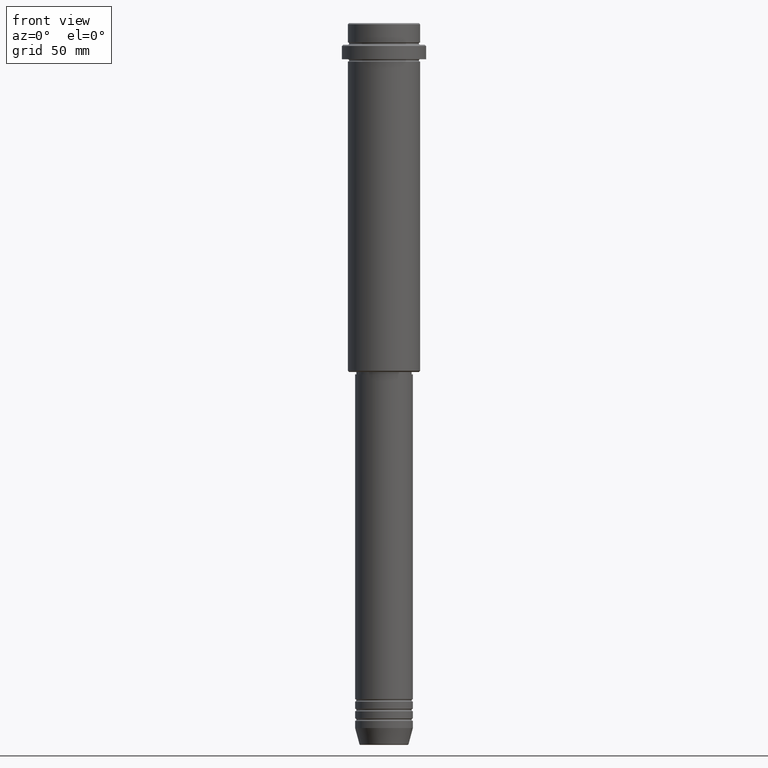
[diagram: clean part render]
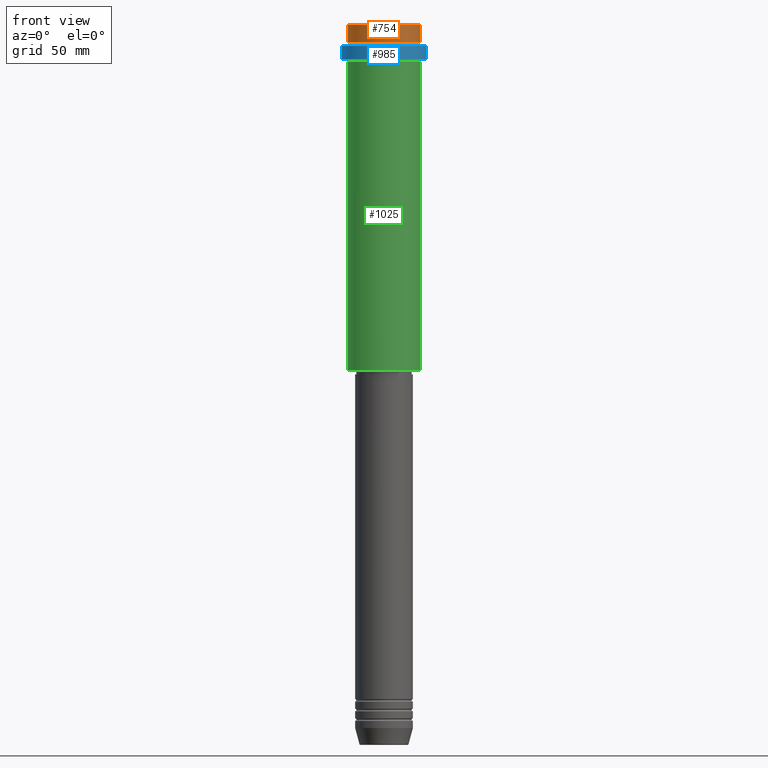
[diagram: same view with three faces highlighted in distinct colors, each labeled with its STEP entity id]
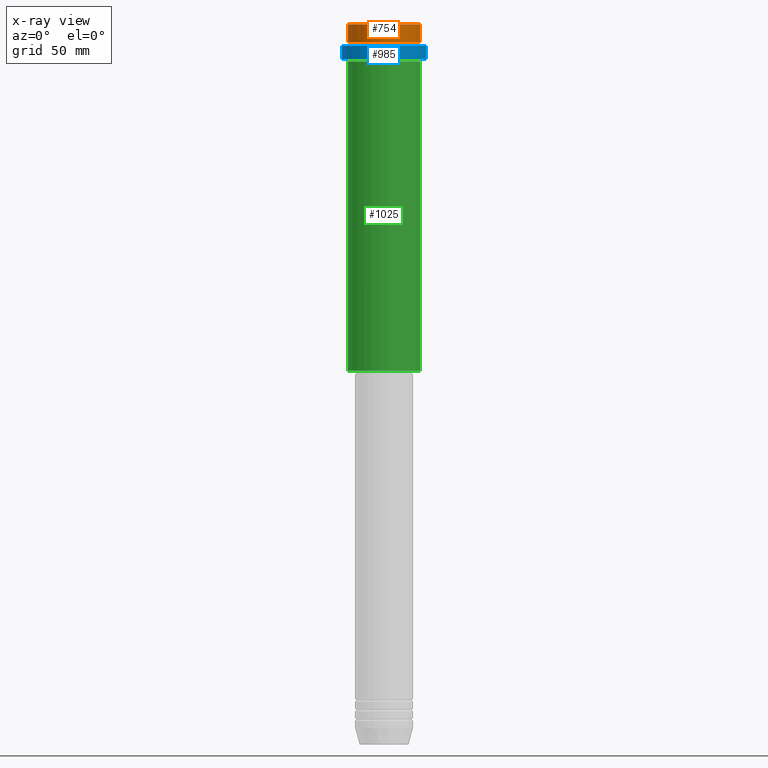
[diagram: x-ray of the same camera — body ghosted, the three highlighted faces saturated]
A machine part, front view with three faces highlighted in distinct colors.
The next image is the same camera in x-ray (body ghosted, the three faces saturated) — at least one of them is partly hidden behind the body in this view.
Their STEP definitions:

[orange] entity #754 — the highlighted cylindrical surface (edge-blend (fillet) strip) has radius 15 mm, axis along (-0, -0, 1).
#49 = VERTEX_POINT ( 'NONE', #160 ) ;
#53 = LINE ( 'NONE', #942, #1100 ) ;
#57 = CIRCLE ( 'NONE', #173, 15.00000000000000000 ) ;
#88 = CARTESIAN_POINT ( 'NONE',  ( -15.00000000000000000, 1.836970198721029589E-15, -0.5000000000000386358 ) ) ;
#95 = CARTESIAN_POINT ( 'NONE',  ( 0.000000000000000000, 0.000000000000000000, -7.999999999999998224 ) ) ;
#123 = EDGE_CURVE ( 'NONE', #1335, #1302, #57, .T. ) ;
#147 = DIRECTION ( 'NONE',  ( 1.000000000000000000, 0.000000000000000000, 0.000000000000000000 ) ) ;
#160 = CARTESIAN_POINT ( 'NONE',  ( 15.00000000000000000, 0.000000000000000000, -7.999999999999998224 ) ) ;
#173 = AXIS2_PLACEMENT_3D ( 'NONE', #1329, #1339, #147 ) ;
#178 = CARTESIAN_POINT ( 'NONE',  ( 0.000000000000000000, 0.000000000000000000, 0.000000000000000000 ) ) ;
#213 = CARTESIAN_POINT ( 'NONE',  ( 15.00000000000000000, 0.000000000000000000, -0.5000000000000386358 ) ) ;
#219 = CIRCLE ( 'NONE', #522, 15.00000000000000000 ) ;
#250 = LINE ( 'NONE', #666, #1166 ) ;
#264 = VERTEX_POINT ( 'NONE', #574 ) ;
#321 = DIRECTION ( 'NONE',  ( -0.000000000000000000, -0.000000000000000000, 1.000000000000000000 ) ) ;
#381 = DIRECTION ( 'NONE',  ( -0.000000000000000000, -0.000000000000000000, 1.000000000000000000 ) ) ;
#412 = DIRECTION ( 'NONE',  ( -0.000000000000000000, -0.000000000000000000, 1.000000000000000000 ) ) ;
#418 = ORIENTED_EDGE ( 'NONE', *, *, #711, .T. ) ;
#522 = AXIS2_PLACEMENT_3D ( 'NONE', #95, #321, #983 ) ;
#553 = EDGE_CURVE ( 'NONE', #264, #1302, #250, .T. ) ;
#574 = CARTESIAN_POINT ( 'NONE',  ( -15.00000000000000000, 1.836970198721029589E-15, -7.999999999999998224 ) ) ;
#666 = CARTESIAN_POINT ( 'NONE',  ( -15.00000000000000000, 1.836970198721029589E-15, 0.000000000000000000 ) ) ;
#711 = EDGE_CURVE ( 'NONE', #49, #1335, #53, .T. ) ;
#754 = ADVANCED_FACE ( 'NONE', ( #975 ), #1397, .T. ) ;
#792 = EDGE_CURVE ( 'NONE', #264, #49, #219, .T. ) ;
#942 = CARTESIAN_POINT ( 'NONE',  ( 15.00000000000000000, 0.000000000000000000, 0.000000000000000000 ) ) ;
#975 = FACE_OUTER_BOUND ( 'NONE', #1158, .T. ) ;
#983 = DIRECTION ( 'NONE',  ( 1.000000000000000000, 0.000000000000000000, 0.000000000000000000 ) ) ;
#1040 = ORIENTED_EDGE ( 'NONE', *, *, #553, .F. ) ;
#1100 = VECTOR ( 'NONE', #381, 1000.000000000000000 ) ;
#1158 = EDGE_LOOP ( 'NONE', ( #1040, #1351, #418, #1373 ) ) ;
#1166 = VECTOR ( 'NONE', #1332, 1000.000000000000000 ) ;
#1302 = VERTEX_POINT ( 'NONE', #88 ) ;
#1329 = CARTESIAN_POINT ( 'NONE',  ( 0.000000000000000000, 0.000000000000000000, -0.5000000000000386358 ) ) ;
#1332 = DIRECTION ( 'NONE',  ( -0.000000000000000000, -0.000000000000000000, 1.000000000000000000 ) ) ;
#1335 = VERTEX_POINT ( 'NONE', #213 ) ;
#1339 = DIRECTION ( 'NONE',  ( 0.000000000000000000, 0.000000000000000000, -1.000000000000000000 ) ) ;
#1351 = ORIENTED_EDGE ( 'NONE', *, *, #792, .T. ) ;
#1373 = ORIENTED_EDGE ( 'NONE', *, *, #123, .T. ) ;
#1390 = AXIS2_PLACEMENT_3D ( 'NONE', #178, #412, #1400 ) ;
#1397 = CYLINDRICAL_SURFACE ( 'NONE', #1390, 15.00000000000000000 ) ;
#1400 = DIRECTION ( 'NONE',  ( 1.000000000000000000, 0.000000000000000000, 0.000000000000000000 ) ) ;

[blue] entity #985 — the highlighted cylindrical surface (partial cylindrical patch) has radius 17.5 mm, axis along (-0, -0, 1).
#17 = CARTESIAN_POINT ( 'NONE',  ( -17.50000000000000000, 2.143131898507868248E-15, -15.00000000000000178 ) ) ;
#27 = CARTESIAN_POINT ( 'NONE',  ( 0.000000000000000000, 0.000000000000000000, -9.500000000000028422 ) ) ;
#144 = DIRECTION ( 'NONE',  ( -0.000000000000000000, -0.000000000000000000, 1.000000000000000000 ) ) ;
#146 = ORIENTED_EDGE ( 'NONE', *, *, #1132, .T. ) ;
#181 = VERTEX_POINT ( 'NONE', #700 ) ;
#188 = EDGE_CURVE ( 'NONE', #566, #1321, #1412, .T. ) ;
#242 = VECTOR ( 'NONE', #144, 1000.000000000000000 ) ;
#360 = CARTESIAN_POINT ( 'NONE',  ( 17.50000000000000000, 0.000000000000000000, 0.000000000000000000 ) ) ;
#432 = CARTESIAN_POINT ( 'NONE',  ( -17.50000000000000000, 2.143131898507868248E-15, 0.000000000000000000 ) ) ;
#517 = ORIENTED_EDGE ( 'NONE', *, *, #1072, .T. ) ;
#554 = DIRECTION ( 'NONE',  ( -0.000000000000000000, -0.000000000000000000, 1.000000000000000000 ) ) ;
#557 = DIRECTION ( 'NONE',  ( 1.000000000000000000, 0.000000000000000000, 0.000000000000000000 ) ) ;
#566 = VERTEX_POINT ( 'NONE', #17 ) ;
#603 = DIRECTION ( 'NONE',  ( 1.000000000000000000, 0.000000000000000000, 0.000000000000000000 ) ) ;
#671 = CYLINDRICAL_SURFACE ( 'NONE', #1346, 17.50000000000000000 ) ;
#700 = CARTESIAN_POINT ( 'NONE',  ( 17.50000000000000000, 0.000000000000000000, -15.00000000000000178 ) ) ;
#724 = DIRECTION ( 'NONE',  ( 0.000000000000000000, 0.000000000000000000, -1.000000000000000000 ) ) ;
#768 = CARTESIAN_POINT ( 'NONE',  ( -17.50000000000000000, 2.143131898507868248E-15, -9.500000000000028422 ) ) ;
#794 = CARTESIAN_POINT ( 'NONE',  ( 0.000000000000000000, 0.000000000000000000, 0.000000000000000000 ) ) ;
#837 = EDGE_LOOP ( 'NONE', ( #864, #1282, #146, #517 ) ) ;
#864 = ORIENTED_EDGE ( 'NONE', *, *, #188, .F. ) ;
#873 = CIRCLE ( 'NONE', #1237, 17.50000000000000000 ) ;
#950 = DIRECTION ( 'NONE',  ( 1.000000000000000000, 0.000000000000000000, 0.000000000000000000 ) ) ;
#985 = ADVANCED_FACE ( 'NONE', ( #1109 ), #671, .T. ) ;
#1051 = CARTESIAN_POINT ( 'NONE',  ( 0.000000000000000000, 0.000000000000000000, -15.00000000000000178 ) ) ;
#1055 = EDGE_CURVE ( 'NONE', #566, #181, #1079, .T. ) ;
#1072 = EDGE_CURVE ( 'NONE', #1202, #1321, #873, .T. ) ;
#1079 = CIRCLE ( 'NONE', #1324, 17.50000000000000000 ) ;
#1104 = DIRECTION ( 'NONE',  ( -0.000000000000000000, -0.000000000000000000, 1.000000000000000000 ) ) ;
#1109 = FACE_OUTER_BOUND ( 'NONE', #837, .T. ) ;
#1132 = EDGE_CURVE ( 'NONE', #181, #1202, #1136, .T. ) ;
#1136 = LINE ( 'NONE', #360, #242 ) ;
#1141 = VECTOR ( 'NONE', #554, 1000.000000000000000 ) ;
#1177 = CARTESIAN_POINT ( 'NONE',  ( 17.50000000000000000, 0.000000000000000000, -9.500000000000028422 ) ) ;
#1202 = VERTEX_POINT ( 'NONE', #1177 ) ;
#1237 = AXIS2_PLACEMENT_3D ( 'NONE', #27, #724, #950 ) ;
#1282 = ORIENTED_EDGE ( 'NONE', *, *, #1055, .T. ) ;
#1321 = VERTEX_POINT ( 'NONE', #768 ) ;
#1324 = AXIS2_PLACEMENT_3D ( 'NONE', #1051, #1360, #603 ) ;
#1346 = AXIS2_PLACEMENT_3D ( 'NONE', #794, #1104, #557 ) ;
#1360 = DIRECTION ( 'NONE',  ( -0.000000000000000000, -0.000000000000000000, 1.000000000000000000 ) ) ;
#1412 = LINE ( 'NONE', #432, #1141 ) ;

[green] entity #1025 — the highlighted cylindrical surface (edge-blend (fillet) strip) has radius 15 mm, axis along (-0, -0, 1).
#73 = VERTEX_POINT ( 'NONE', #649 ) ;
#100 = DIRECTION ( 'NONE',  ( 1.000000000000000000, 0.000000000000000000, 0.000000000000000000 ) ) ;
#101 = VERTEX_POINT ( 'NONE', #1218 ) ;
#204 = EDGE_CURVE ( 'NONE', #101, #1340, #774, .T. ) ;
#238 = CYLINDRICAL_SURFACE ( 'NONE', #474, 15.00000000000000000 ) ;
#241 = VECTOR ( 'NONE', #314, 1000.000000000000000 ) ;
#248 = CARTESIAN_POINT ( 'NONE',  ( 15.00000000000000000, 0.000000000000000000, -144.5000000000000568 ) ) ;
#314 = DIRECTION ( 'NONE',  ( -0.000000000000000000, -0.000000000000000000, 1.000000000000000000 ) ) ;
#315 = ORIENTED_EDGE ( 'NONE', *, *, #808, .T. ) ;
#396 = VERTEX_POINT ( 'NONE', #248 ) ;
#419 = EDGE_LOOP ( 'NONE', ( #502, #1273, #315, #564 ) ) ;
#474 = AXIS2_PLACEMENT_3D ( 'NONE', #1017, #1336, #766 ) ;
#502 = ORIENTED_EDGE ( 'NONE', *, *, #204, .F. ) ;
#543 = DIRECTION ( 'NONE',  ( -0.000000000000000000, -0.000000000000000000, 1.000000000000000000 ) ) ;
#564 = ORIENTED_EDGE ( 'NONE', *, *, #981, .F. ) ;
#575 = FACE_OUTER_BOUND ( 'NONE', #419, .T. ) ;
#649 = CARTESIAN_POINT ( 'NONE',  ( 15.00000000000000178, 0.000000000000000000, -16.00000000000000000 ) ) ;
#663 = DIRECTION ( 'NONE',  ( -0.000000000000000000, -0.000000000000000000, 1.000000000000000000 ) ) ;
#766 = DIRECTION ( 'NONE',  ( 1.000000000000000000, 0.000000000000000000, 0.000000000000000000 ) ) ;
#774 = LINE ( 'NONE', #1000, #891 ) ;
#786 = DIRECTION ( 'NONE',  ( -0.000000000000000000, -0.000000000000000000, 1.000000000000000000 ) ) ;
#808 = EDGE_CURVE ( 'NONE', #396, #73, #1278, .T. ) ;
#874 = CARTESIAN_POINT ( 'NONE',  ( 15.00000000000000000, 0.000000000000000000, 0.000000000000000000 ) ) ;
#891 = VECTOR ( 'NONE', #786, 1000.000000000000000 ) ;
#981 = EDGE_CURVE ( 'NONE', #1340, #73, #1125, .T. ) ;
#989 = CARTESIAN_POINT ( 'NONE',  ( -15.00000000000000355, 1.836970198721029983E-15, -16.00000000000000000 ) ) ;
#1000 = CARTESIAN_POINT ( 'NONE',  ( -15.00000000000000000, 1.836970198721029589E-15, 0.000000000000000000 ) ) ;
#1015 = CIRCLE ( 'NONE', #1153, 15.00000000000000000 ) ;
#1017 = CARTESIAN_POINT ( 'NONE',  ( 0.000000000000000000, 0.000000000000000000, 0.000000000000000000 ) ) ;
#1025 = ADVANCED_FACE ( 'NONE', ( #575 ), #238, .T. ) ;
#1031 = AXIS2_PLACEMENT_3D ( 'NONE', #1115, #663, #100 ) ;
#1115 = CARTESIAN_POINT ( 'NONE',  ( 0.000000000000000000, 0.000000000000000000, -16.00000000000000000 ) ) ;
#1125 = CIRCLE ( 'NONE', #1031, 15.00000000000000178 ) ;
#1153 = AXIS2_PLACEMENT_3D ( 'NONE', #1330, #543, #1316 ) ;
#1218 = CARTESIAN_POINT ( 'NONE',  ( -15.00000000000000000, 1.836970198721029589E-15, -144.5000000000000568 ) ) ;
#1273 = ORIENTED_EDGE ( 'NONE', *, *, #1386, .T. ) ;
#1278 = LINE ( 'NONE', #874, #241 ) ;
#1316 = DIRECTION ( 'NONE',  ( -1.000000000000000000, 0.000000000000000000, 0.000000000000000000 ) ) ;
#1330 = CARTESIAN_POINT ( 'NONE',  ( 0.000000000000000000, 0.000000000000000000, -144.5000000000000568 ) ) ;
#1336 = DIRECTION ( 'NONE',  ( -0.000000000000000000, -0.000000000000000000, 1.000000000000000000 ) ) ;
#1340 = VERTEX_POINT ( 'NONE', #989 ) ;
#1386 = EDGE_CURVE ( 'NONE', #101, #396, #1015, .T. ) ;